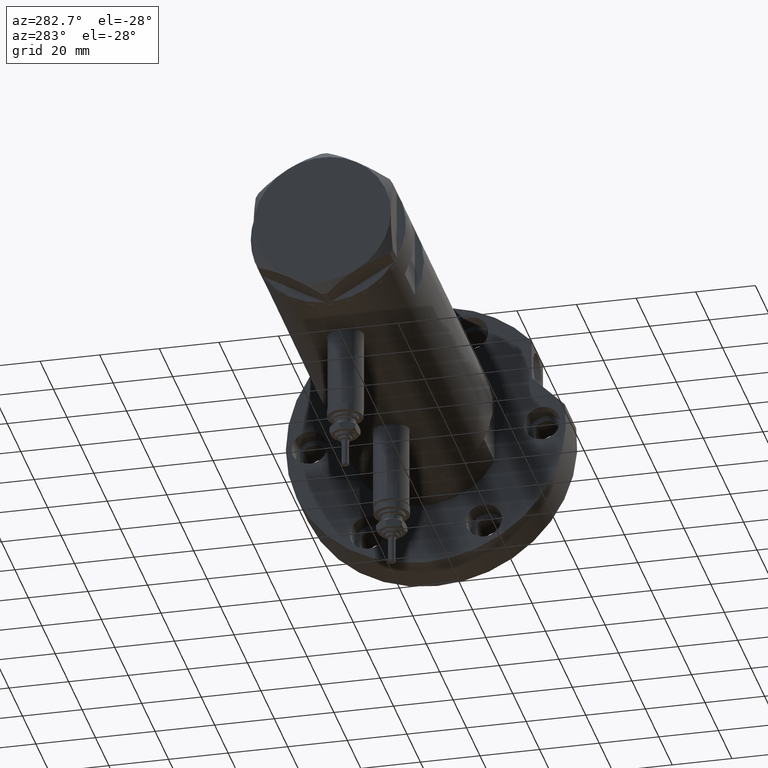
[diagram: clean part render]
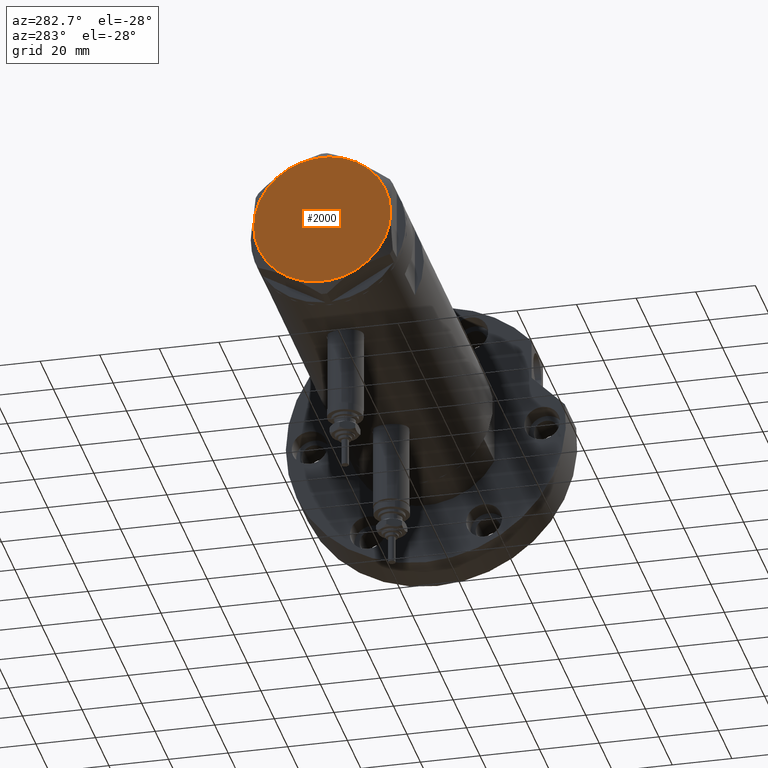
[diagram: same view with one face highlighted and labeled with its STEP entity id]
A machine part, auxiliary view. The second image highlights one B-rep face of the part: STEP entity #2000.
In plain terms, the highlighted planar face has unit normal (-1, -0, 0).
Its self-contained STEP definition (entity closure, byte-faithful):
#66 = AXIS2_PLACEMENT_3D ( 'NONE', #2173, #6461, #5195 ) ;
#386 = AXIS2_PLACEMENT_3D ( 'NONE', #6178, #6140, #5410 ) ;
#415 = VERTEX_POINT ( 'NONE', #3097 ) ;
#419 = CARTESIAN_POINT ( 'NONE',  ( 0.000000000000000000, 0.000000000000000000, 9.000000000000000000 ) ) ;
#648 = CIRCLE ( 'NONE', #5137, 23.00000000000004619 ) ;
#807 = CARTESIAN_POINT ( 'NONE',  ( 0.000000000000000000, 0.000000000000000000, 9.000000000000000000 ) ) ;
#1005 = EDGE_CURVE ( 'NONE', #6593, #4550, #7775, .T. ) ;
#1135 = CIRCLE ( 'NONE', #2070, 23.00000000000004619 ) ;
#1594 = DIRECTION ( 'NONE',  ( 1.000000000000000000, 0.000000000000000000, -0.000000000000000000 ) ) ;
#1999 = DIRECTION ( 'NONE',  ( 1.000000000000000000, 0.000000000000000000, 0.000000000000000000 ) ) ;
#2000 = ADVANCED_FACE ( 'NONE', ( #4585 ), #4469, .T. ) ;
#2070 = AXIS2_PLACEMENT_3D ( 'NONE', #419, #4781, #2930 ) ;
#2163 = CARTESIAN_POINT ( 'NONE',  ( -23.00000000000004619, -8.112498833180673323E-14, 9.000000000000000000 ) ) ;
#2173 = CARTESIAN_POINT ( 'NONE',  ( 0.000000000000000000, 0.000000000000000000, 9.000000000000000000 ) ) ;
#2285 = AXIS2_PLACEMENT_3D ( 'NONE', #3371, #7641, #1594 ) ;
#2498 = CARTESIAN_POINT ( 'NONE',  ( -11.50000000000004441, 19.91858428704211548, 9.000000000000000000 ) ) ;
#2546 = DIRECTION ( 'NONE',  ( 0.000000000000000000, 0.000000000000000000, 1.000000000000000000 ) ) ;
#2557 = VERTEX_POINT ( 'NONE', #2950 ) ;
#2795 = CARTESIAN_POINT ( 'NONE',  ( -11.49999999999990585, -19.91858428704219364, 9.000000000000000000 ) ) ;
#2930 = DIRECTION ( 'NONE',  ( 1.000000000000000000, 0.000000000000000000, 0.000000000000000000 ) ) ;
#2950 = CARTESIAN_POINT ( 'NONE',  ( 11.49999999999990408, 19.91858428704219364, 9.000000000000000000 ) ) ;
#3097 = CARTESIAN_POINT ( 'NONE',  ( 22.99999999999995026, 2.373657066004705010E-13, 9.000000000000000000 ) ) ;
#3239 = ORIENTED_EDGE ( 'NONE', *, *, #5705, .T. ) ;
#3371 = CARTESIAN_POINT ( 'NONE',  ( 0.000000000000000000, 0.000000000000000000, 9.000000000000000000 ) ) ;
#3485 = CARTESIAN_POINT ( 'NONE',  ( 11.50000000000018296, -19.91858428704203732, 9.000000000000000000 ) ) ;
#3967 = CARTESIAN_POINT ( 'NONE',  ( 0.000000000000000000, 0.000000000000000000, 9.000000000000000000 ) ) ;
#4005 = DIRECTION ( 'NONE',  ( 0.000000000000000000, 0.000000000000000000, 1.000000000000000000 ) ) ;
#4055 = DIRECTION ( 'NONE',  ( 1.000000000000000000, 0.000000000000000000, 0.000000000000000000 ) ) ;
#4113 = DIRECTION ( 'NONE',  ( 1.000000000000000000, 0.000000000000000000, 0.000000000000000000 ) ) ;
#4382 = EDGE_CURVE ( 'NONE', #415, #2557, #6249, .T. ) ;
#4469 = PLANE ( 'NONE',  #2285 ) ;
#4550 = VERTEX_POINT ( 'NONE', #2795 ) ;
#4585 = FACE_OUTER_BOUND ( 'NONE', #6804, .T. ) ;
#4668 = DIRECTION ( 'NONE',  ( 0.000000000000000000, 0.000000000000000000, 1.000000000000000000 ) ) ;
#4781 = DIRECTION ( 'NONE',  ( 0.000000000000000000, 0.000000000000000000, 1.000000000000000000 ) ) ;
#4871 = ORIENTED_EDGE ( 'NONE', *, *, #5080, .T. ) ;
#4878 = EDGE_CURVE ( 'NONE', #6299, #415, #1135, .T. ) ;
#5071 = ORIENTED_EDGE ( 'NONE', *, *, #4382, .T. ) ;
#5080 = EDGE_CURVE ( 'NONE', #2557, #7660, #7450, .T. ) ;
#5137 = AXIS2_PLACEMENT_3D ( 'NONE', #3967, #4005, #4113 ) ;
#5195 = DIRECTION ( 'NONE',  ( 1.000000000000000000, 0.000000000000000000, 0.000000000000000000 ) ) ;
#5410 = DIRECTION ( 'NONE',  ( 1.000000000000000000, 0.000000000000000000, 0.000000000000000000 ) ) ;
#5705 = EDGE_CURVE ( 'NONE', #4550, #6299, #7458, .T. ) ;
#5965 = CARTESIAN_POINT ( 'NONE',  ( 0.000000000000000000, 0.000000000000000000, 9.000000000000000000 ) ) ;
#6140 = DIRECTION ( 'NONE',  ( 0.000000000000000000, 0.000000000000000000, 1.000000000000000000 ) ) ;
#6178 = CARTESIAN_POINT ( 'NONE',  ( 0.000000000000000000, 0.000000000000000000, 9.000000000000000000 ) ) ;
#6249 = CIRCLE ( 'NONE', #7046, 23.00000000000004619 ) ;
#6299 = VERTEX_POINT ( 'NONE', #3485 ) ;
#6310 = ORIENTED_EDGE ( 'NONE', *, *, #4878, .T. ) ;
#6461 = DIRECTION ( 'NONE',  ( 0.000000000000000000, 0.000000000000000000, 1.000000000000000000 ) ) ;
#6506 = ORIENTED_EDGE ( 'NONE', *, *, #7538, .T. ) ;
#6593 = VERTEX_POINT ( 'NONE', #2163 ) ;
#6655 = AXIS2_PLACEMENT_3D ( 'NONE', #807, #2546, #1999 ) ;
#6804 = EDGE_LOOP ( 'NONE', ( #6310, #5071, #4871, #6506, #7617, #3239 ) ) ;
#7046 = AXIS2_PLACEMENT_3D ( 'NONE', #5965, #4668, #4055 ) ;
#7450 = CIRCLE ( 'NONE', #386, 23.00000000000004619 ) ;
#7458 = CIRCLE ( 'NONE', #6655, 23.00000000000004619 ) ;
#7538 = EDGE_CURVE ( 'NONE', #7660, #6593, #648, .T. ) ;
#7617 = ORIENTED_EDGE ( 'NONE', *, *, #1005, .T. ) ;
#7641 = DIRECTION ( 'NONE',  ( 0.000000000000000000, 0.000000000000000000, 1.000000000000000000 ) ) ;
#7660 = VERTEX_POINT ( 'NONE', #2498 ) ;
#7775 = CIRCLE ( 'NONE', #66, 23.00000000000004619 ) ;